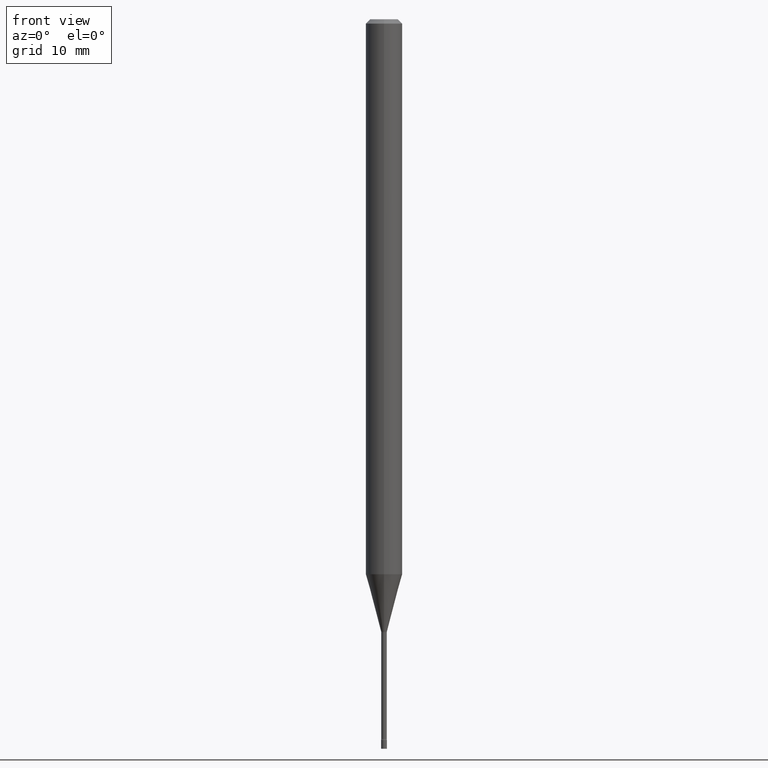
[diagram: clean part render]
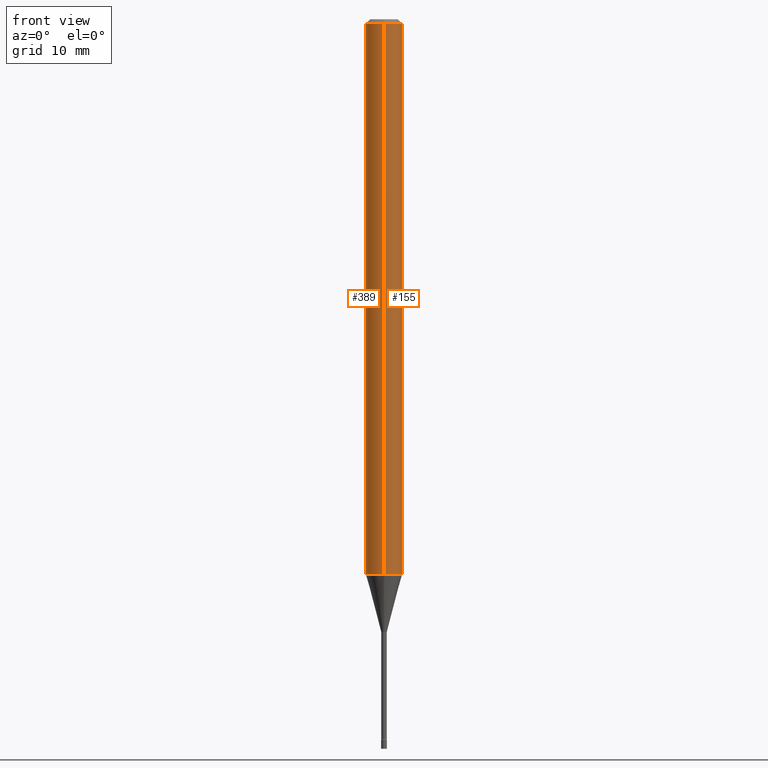
[diagram: same view with one multi-face feature highlighted, each face labeled with its STEP entity id]
A machine part, front view. The highlighted faces form ONE feature: a constant-radius fillet chain: 2 tangent blend faces with common blend radius 1.5875 mm. The faces share edges in the B-rep.
Their STEP definitions:
[1] entity #389 (Cylinder):
#5 = CIRCLE ( 'NONE', #218, 0.06250000000000000000 ) ;
#9 = EDGE_CURVE ( 'NONE', #446, #299, #5, .T. ) ;
#25 = CARTESIAN_POINT ( 'NONE',  ( 3.668304814086678845E-31, -5.237076504395302352E-17, -0.01500000000000003067 ) ) ;
#38 = CARTESIAN_POINT ( 'NONE',  ( 4.440892098500625669E-16, 0.06250000000000000000, -2.182115210164704958E-16 ) ) ;
#107 = VERTEX_POINT ( 'NONE', #368 ) ;
#108 = CARTESIAN_POINT ( 'NONE',  ( 0.000000000000000000, 0.000000000000000000, 0.000000000000000000 ) ) ;
#109 = LINE ( 'NONE', #38, #116 ) ;
#111 = VECTOR ( 'NONE', #395, 39.37007874015748143 ) ;
#116 = VECTOR ( 'NONE', #268, 39.37007874015748143 ) ;
#125 = ORIENTED_EDGE ( 'NONE', *, *, #277, .F. ) ;
#151 = DIRECTION ( 'NONE',  ( -6.982962677686265922E-15, -1.000000000000000000, 3.491384336263527933E-15 ) ) ;
#154 = LINE ( 'NONE', #437, #111 ) ;
#190 = FACE_OUTER_BOUND ( 'NONE', #200, .T. ) ;
#195 = ORIENTED_EDGE ( 'NONE', *, *, #265, .T. ) ;
#200 = EDGE_LOOP ( 'NONE', ( #125, #425, #195, #290 ) ) ;
#205 = CARTESIAN_POINT ( 'NONE',  ( 4.440892098501093562E-16, 0.06249999999999993755, -0.01500000000000024751 ) ) ;
#218 = AXIS2_PLACEMENT_3D ( 'NONE', #25, #341, #463 ) ;
#221 = DIRECTION ( 'NONE',  ( -2.445536542724447659E-29, 3.491384336263527933E-15, 1.000000000000000000 ) ) ;
#231 = EDGE_CURVE ( 'NONE', #456, #107, #511, .T. ) ;
#265 = EDGE_CURVE ( 'NONE', #107, #299, #154, .T. ) ;
#268 = DIRECTION ( 'NONE',  ( -2.445536542724447659E-29, 3.491384336263527933E-15, 1.000000000000000000 ) ) ;
#271 = AXIS2_PLACEMENT_3D ( 'NONE', #385, #221, #462 ) ;
#277 = EDGE_CURVE ( 'NONE', #456, #446, #109, .T. ) ;
#290 = ORIENTED_EDGE ( 'NONE', *, *, #9, .F. ) ;
#299 = VERTEX_POINT ( 'NONE', #304 ) ;
#304 = CARTESIAN_POINT ( 'NONE',  ( -4.364351673553912750E-16, -0.06250000000000005551, -0.01499999999999981209 ) ) ;
#341 = DIRECTION ( 'NONE',  ( -2.445536542724447659E-29, 3.491384336263527933E-15, 1.000000000000000000 ) ) ;
#355 = DIRECTION ( 'NONE',  ( -2.445536542724447659E-29, 3.491384336263527933E-15, 1.000000000000000000 ) ) ;
#368 = CARTESIAN_POINT ( 'NONE',  ( -4.364351673553451266E-16, -0.06250000000000664746, -1.901828102118092945 ) ) ;
#385 = CARTESIAN_POINT ( 'NONE',  ( 4.650990121710079435E-29, -6.640012846000903437E-15, -1.901828102118093167 ) ) ;
#389 = ADVANCED_FACE ( 'NONE', ( #190 ), #469, .T. ) ;
#395 = DIRECTION ( 'NONE',  ( -2.445536542724447659E-29, 3.491384336263527933E-15, 1.000000000000000000 ) ) ;
#425 = ORIENTED_EDGE ( 'NONE', *, *, #231, .T. ) ;
#437 = CARTESIAN_POINT ( 'NONE',  ( -4.364351673553916201E-16, -0.06250000000000000000, 2.182115210164704958E-16 ) ) ;
#446 = VERTEX_POINT ( 'NONE', #205 ) ;
#456 = VERTEX_POINT ( 'NONE', #491 ) ;
#462 = DIRECTION ( 'NONE',  ( -6.982962677686265922E-15, -1.000000000000000000, 4.370956789862821150E-15 ) ) ;
#463 = DIRECTION ( 'NONE',  ( -6.982962677686265922E-15, -1.000000000000000000, 3.483106191921935554E-15 ) ) ;
#465 = AXIS2_PLACEMENT_3D ( 'NONE', #108, #355, #151 ) ;
#469 = CYLINDRICAL_SURFACE ( 'NONE', #465, 0.06250000000000000000 ) ;
#491 = CARTESIAN_POINT ( 'NONE',  ( 4.440892098501090604E-16, 0.06249999999999335948, -1.901828102118093389 ) ) ;
#511 = CIRCLE ( 'NONE', #271, 0.06250000000000000000 ) ;
[2] entity #155 (Cylinder):
#18 = CARTESIAN_POINT ( 'NONE',  ( 0.000000000000000000, 0.000000000000000000, 0.000000000000000000 ) ) ;
#38 = CARTESIAN_POINT ( 'NONE',  ( 4.440892098500625669E-16, 0.06250000000000000000, -2.182115210164704958E-16 ) ) ;
#75 = AXIS2_PLACEMENT_3D ( 'NONE', #18, #171, #417 ) ;
#92 = ORIENTED_EDGE ( 'NONE', *, *, #265, .F. ) ;
#100 = DIRECTION ( 'NONE',  ( -6.982962677686265922E-15, -1.000000000000000000, 3.483106191921935554E-15 ) ) ;
#107 = VERTEX_POINT ( 'NONE', #368 ) ;
#109 = LINE ( 'NONE', #38, #116 ) ;
#111 = VECTOR ( 'NONE', #395, 39.37007874015748143 ) ;
#116 = VECTOR ( 'NONE', #268, 39.37007874015748143 ) ;
#153 = AXIS2_PLACEMENT_3D ( 'NONE', #267, #193, #408 ) ;
#154 = LINE ( 'NONE', #437, #111 ) ;
#155 = ADVANCED_FACE ( 'NONE', ( #329 ), #496, .T. ) ;
#171 = DIRECTION ( 'NONE',  ( -2.445536542724447659E-29, 3.491384336263527933E-15, 1.000000000000000000 ) ) ;
#191 = AXIS2_PLACEMENT_3D ( 'NONE', #298, #459, #100 ) ;
#193 = DIRECTION ( 'NONE',  ( -2.445536542724447659E-29, 3.491384336263527933E-15, 1.000000000000000000 ) ) ;
#205 = CARTESIAN_POINT ( 'NONE',  ( 4.440892098501093562E-16, 0.06249999999999993755, -0.01500000000000024751 ) ) ;
#211 = EDGE_CURVE ( 'NONE', #299, #446, #372, .T. ) ;
#265 = EDGE_CURVE ( 'NONE', #107, #299, #154, .T. ) ;
#267 = CARTESIAN_POINT ( 'NONE',  ( 4.650990121710079435E-29, -6.640012846000903437E-15, -1.901828102118093167 ) ) ;
#268 = DIRECTION ( 'NONE',  ( -2.445536542724447659E-29, 3.491384336263527933E-15, 1.000000000000000000 ) ) ;
#277 = EDGE_CURVE ( 'NONE', #456, #446, #109, .T. ) ;
#298 = CARTESIAN_POINT ( 'NONE',  ( 3.668304814086678845E-31, -5.237076504395302352E-17, -0.01500000000000003067 ) ) ;
#299 = VERTEX_POINT ( 'NONE', #304 ) ;
#301 = ORIENTED_EDGE ( 'NONE', *, *, #430, .T. ) ;
#304 = CARTESIAN_POINT ( 'NONE',  ( -4.364351673553912750E-16, -0.06250000000000005551, -0.01499999999999981209 ) ) ;
#329 = FACE_OUTER_BOUND ( 'NONE', #400, .T. ) ;
#368 = CARTESIAN_POINT ( 'NONE',  ( -4.364351673553451266E-16, -0.06250000000000664746, -1.901828102118092945 ) ) ;
#372 = CIRCLE ( 'NONE', #191, 0.06250000000000000000 ) ;
#395 = DIRECTION ( 'NONE',  ( -2.445536542724447659E-29, 3.491384336263527933E-15, 1.000000000000000000 ) ) ;
#400 = EDGE_LOOP ( 'NONE', ( #301, #452, #407, #92 ) ) ;
#407 = ORIENTED_EDGE ( 'NONE', *, *, #211, .F. ) ;
#408 = DIRECTION ( 'NONE',  ( -6.982962677686265922E-15, -1.000000000000000000, 4.370956789862821150E-15 ) ) ;
#417 = DIRECTION ( 'NONE',  ( -6.982962677686265922E-15, -1.000000000000000000, 3.491384336263527933E-15 ) ) ;
#430 = EDGE_CURVE ( 'NONE', #107, #456, #434, .T. ) ;
#434 = CIRCLE ( 'NONE', #153, 0.06250000000000000000 ) ;
#437 = CARTESIAN_POINT ( 'NONE',  ( -4.364351673553916201E-16, -0.06250000000000000000, 2.182115210164704958E-16 ) ) ;
#446 = VERTEX_POINT ( 'NONE', #205 ) ;
#452 = ORIENTED_EDGE ( 'NONE', *, *, #277, .T. ) ;
#456 = VERTEX_POINT ( 'NONE', #491 ) ;
#459 = DIRECTION ( 'NONE',  ( -2.445536542724447659E-29, 3.491384336263527933E-15, 1.000000000000000000 ) ) ;
#491 = CARTESIAN_POINT ( 'NONE',  ( 4.440892098501090604E-16, 0.06249999999999335948, -1.901828102118093389 ) ) ;
#496 = CYLINDRICAL_SURFACE ( 'NONE', #75, 0.06250000000000000000 ) ;